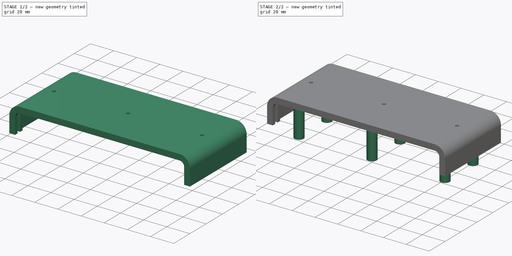
[diagram: build sequence overview — one tinted view per stage of 2, left to right]
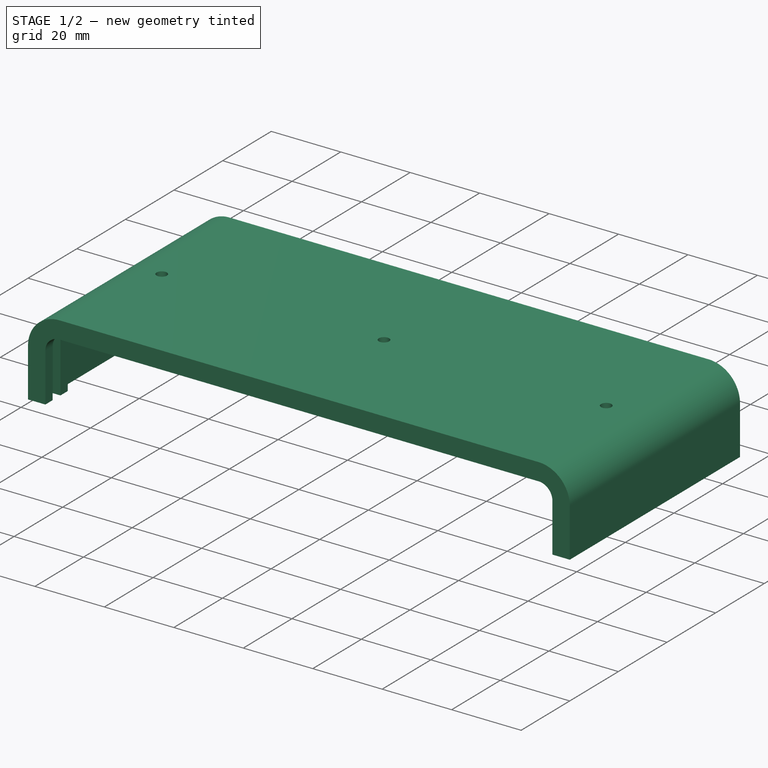
[diagram: stage 1 of 2 — iso view after this stage's code; geometry added in this stage tinted green]
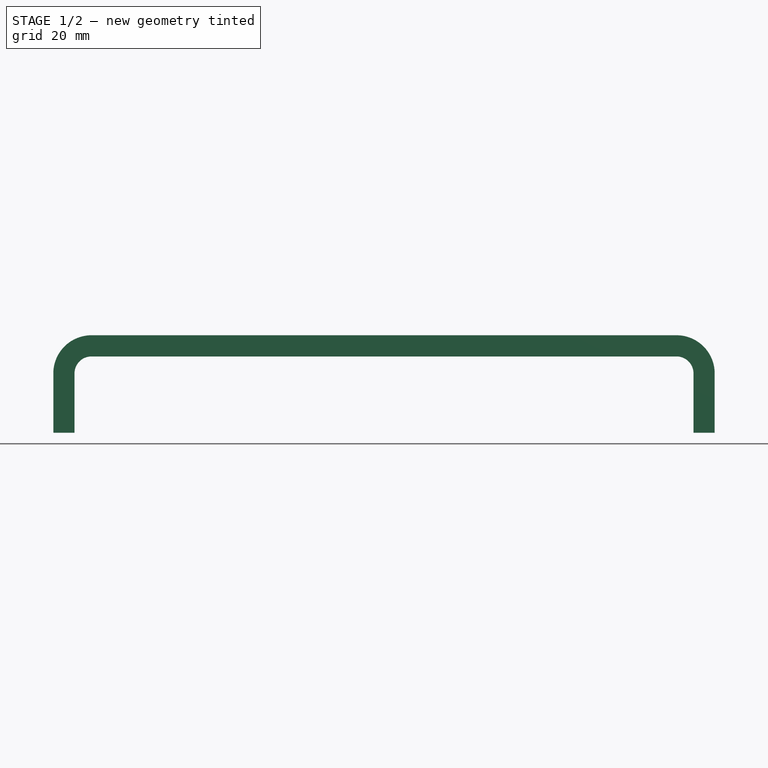
[diagram: stage 1 of 2 — front view after this stage's code; geometry added in this stage tinted green]
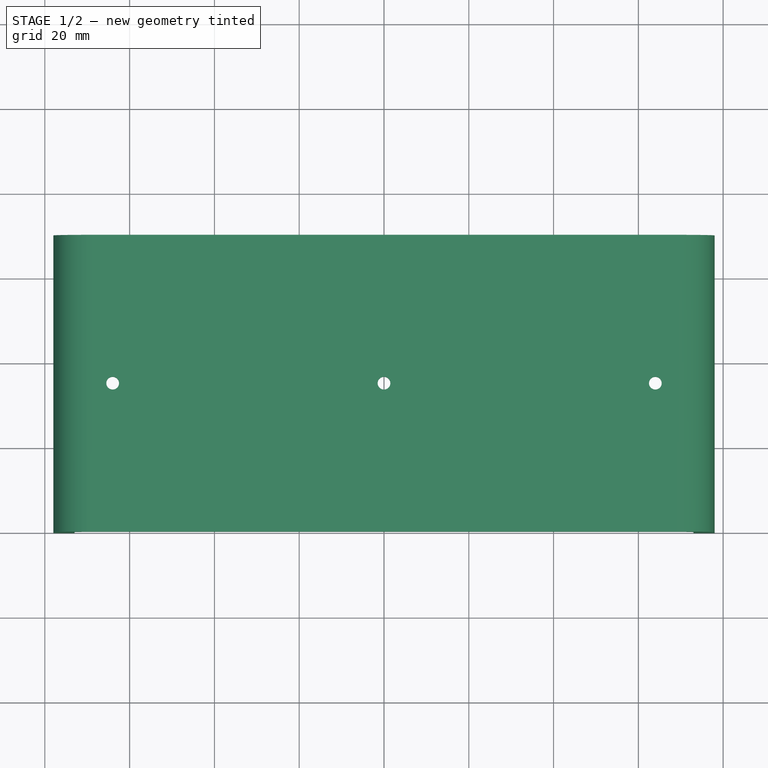
[diagram: stage 1 of 2 — top view after this stage's code; geometry added in this stage tinted green]
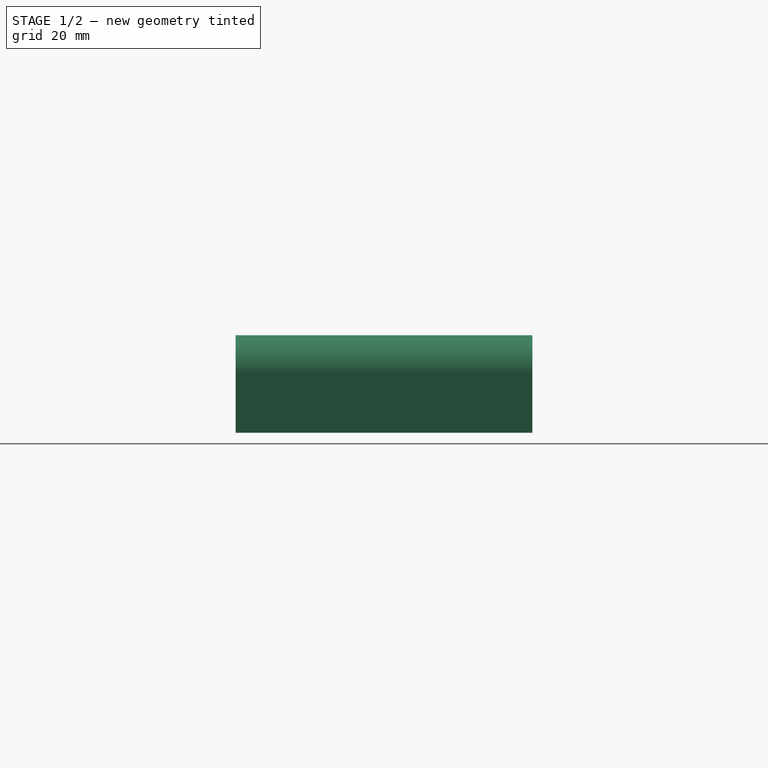
[diagram: stage 1 of 2 — right view after this stage's code; geometry added in this stage tinted green]
FCSTD DOCUMENT  (FreeCAD 0.20R29603 (Git))
Label: dessus
License: Public Domain
LicenseURL: http://en.wikipedia.org/wiki/Public_domain
objects: Sketcher::SketchObject×5, PartDesign::Pocket×2, PartDesign::AdditivePipe×1, PartDesign::Pad×1, PartDesign::Body×1
note: 14 computed .brp shape members not serialized (recipe doc carries the construction recipe); baked Part::Feature solids carry a one-line shape summary decoded from their .brp

FEATURE [Sketcher::SketchObject] Sketch  label="section"
  FullyConstrained = true
  MapMode = 5
  Placement = pos=(0,0,0) rot=(0.57735,0.57735,0.57735;2.0944rad)
  Support = -> [YZ_Plane]
  sketch-geometry (16):
    g0: LineSegment StartX=0 StartY=5 StartZ=0 EndX=70 EndY=5 EndZ=0
    g1: LineSegment StartX=70 StartY=5 StartZ=0 EndX=70 EndY=0 EndZ=0
    g2: LineSegment StartX=70 StartY=0 StartZ=0 EndX=67 EndY=0 EndZ=0
    g3: LineSegment StartX=60.8 StartY=2.2 StartZ=0 EndX=9.2 EndY=2.2 EndZ=0
    g4: LineSegment StartX=9.2 StartY=2.2 StartZ=0 EndX=9.2 EndY=0 EndZ=0
    g5: LineSegment StartX=9.2 StartY=0 StartZ=0 EndX=6.2 EndY=0 EndZ=0
    g6: LineSegment StartX=6.2 StartY=0 StartZ=0 EndX=6.2 EndY=2.2 EndZ=0
    g7: LineSegment StartX=0 StartY=5 StartZ=0 EndX=0 EndY=0 EndZ=0
    g8: LineSegment StartX=3 StartY=2.2 StartZ=0 EndX=3 EndY=0 EndZ=0
    g9: LineSegment StartX=0 StartY=0 StartZ=0 EndX=3 EndY=0 EndZ=0
    g10: LineSegment StartX=3 StartY=2.2 StartZ=0 EndX=6.2 EndY=2.2 EndZ=0
    g11: LineSegment StartX=67 StartY=0 StartZ=0 EndX=67 EndY=2.2 EndZ=0
    g12: LineSegment StartX=67 StartY=2.2 StartZ=0 EndX=63.8 EndY=2.2 EndZ=0
    g13: LineSegment StartX=63.8 StartY=2.2 StartZ=0 EndX=63.8 EndY=0 EndZ=0
    g14: LineSegment StartX=63.8 StartY=0 StartZ=0 EndX=60.8 EndY=0 EndZ=0
    g15: LineSegment StartX=60.8 StartY=0 StartZ=0 EndX=60.8 EndY=2.2 EndZ=0
  constraints (48):
    c: Horizontal(g0)
    c: Coincident(g0,g1)
    c: Coincident(g1,g2)
    c: Horizontal(g2)
    c: Horizontal(g3)
    c: Coincident(g3,g4)
    c: Vertical(g4)
    c: Coincident(g4,g5)
    c: Coincident(g5,g6)
    c: Vertical(g6)
    c: Vertical(g1)
    c: Horizontal(g5)
    c: DistanceX(g0,g0) = 70
    c: DistanceX(g8,g6) = 3.2
    c: DistanceX(g5,g5) = 3
    c: Horizontal(g3,g6)
    c: PointOnObject(g5,g-1)
    c: Coincident(g7,g0)
    c: Coincident(g7,g-1)
    c: Vertical(g7)
    c: PointOnObject(g8,g-1)
    c: Vertical(g8)
    c: Coincident(g9,g7)
    c: Coincident(g9,g8)
    c: DistanceX(g9,g9) = 3
    c: PointOnObject(g1,g-1)
    c: Equal(g2,g9)
    c: Coincident(g10,g8)
    c: Coincident(g10,g6)
    c: Horizontal(g10)
    c: DistanceY(g8,g8) = 2.2
    c: DistanceY(g7,g0) = 5
    c: Coincident(g11,g2)
    c: Vertical(g11)
    c: Coincident(g12,g11)
    c: Horizontal(g12)
    c: Coincident(g13,g12)
    c: PointOnObject(g13,g-1)
    c: Vertical(g13)
    c: Coincident(g14,g13)
    c: PointOnObject(g14,g-1)
    c: Coincident(g15,g14)
    c: Coincident(g15,g3)
    c: Vertical(g15)
    c: Horizontal(g12,g3)
    c: Equal(g12,g10)
    c: Equal(g14,g5)
    c: DistanceY(g1,g1) = 5
FEATURE [Sketcher::SketchObject] Sketch001  label="pipe_curve_right"
  FullyConstrained = true
  MapMode = 5
  Placement = pos=(0,0,0) rot=(1,0,0;1.5708rad)
  Support = -> [XZ_Plane]
  sketch-geometry (6):
    g0: LineSegment StartX=0 StartY=0 StartZ=0 EndX=69 EndY=0 EndZ=0
    g1: ArcOfCircle CenterX=69 CenterY=-4 CenterZ=0 NormalX=0 NormalY=0 NormalZ=1 AngleXU=0 Radius=4 StartAngle=0 EndAngle=1.5708
    g2: LineSegment StartX=73 StartY=-4 StartZ=0 EndX=73 EndY=-18 EndZ=0
    g3: LineSegment StartX=0 StartY=0 StartZ=0 EndX=-69 EndY=6.2e-15 EndZ=0
    g4: ArcOfCircle CenterX=-69 CenterY=-4 CenterZ=0 NormalX=0 NormalY=0 NormalZ=1 AngleXU=0 Radius=4 StartAngle=1.5708 EndAngle=3.14159
    g5: LineSegment StartX=-73 StartY=-4 StartZ=0 EndX=-73 EndY=-18 EndZ=0
  constraints (20):
    c: Horizontal(g0)
    c: Coincident(g1,g0)
    c: Vertical(g1,g0)
    c: Horizontal(g1,g1)
    c: Coincident(g2,g1)
    c: Vertical(g2)
    c: Coincident(g0,g-1)
    c: Coincident(g3,g0)
    c: PointOnObject(g3,g-1)
    c: Coincident(g4,g3)
    c: Vertical(g4,g3)
    c: Horizontal(g4,g4)
    c: Radius(g4) = 4
    c: Coincident(g5,g4)
    c: Vertical(g5)
    c: DistanceY(g5,g5) = 14
    c: DistanceX(g3,g3) = 69
    c: Equal(g0,g3)
    c: Equal(g2,g5)
    c: Equal(g1,g4)
FEATURE [PartDesign::AdditivePipe] AdditivePipe
  AuxilleryCurvelinear = true
  AuxillerySpineTangent = false
  Binormal = (0,0,0)
  Mode = 0
  Placement = pos=(0,0,0) rot=(0.57735,0.57735,0.57735;2.0944rad)
  Profile = -> Sketch
  Spine = -> Sketch001
  SpineTangent = false
  Transformation = 0
  Transition = 0
FEATURE [Sketcher::SketchObject] Sketch002
  ExternalGeometry = -> [AdditivePipe]
  FullyConstrained = true
  MapMode = 5
  Placement = pos=(-1e-16,2.8e-15,5) rot=(0,0,-1;1.5708rad)
  Support = -> [AdditivePipe]
  sketch-geometry (3):
    g0: Circle CenterX=-35 CenterY=-64 CenterZ=0 NormalX=0 NormalY=0 NormalZ=1 AngleXU=0 Radius=1.5
    g1: Circle CenterX=-35 CenterY=64 CenterZ=0 NormalX=0 NormalY=0 NormalZ=1 AngleXU=0 Radius=1.5
    g2: Circle CenterX=-35 CenterY=0 CenterZ=0 NormalX=0 NormalY=0 NormalZ=1 AngleXU=0 Radius=1.5
  constraints (9):
    c: Diameter(g1) = 3
    c: Equal(g0,g1)
    c: DistanceX(g-3,g1) = 35
    c: DistanceY(g1,g-3) = 5
    c: DistanceX(g-4,g0) = 35
    c: DistanceY(g-4,g0) = 5
    c: Equal(g2,g1)
    c: PointOnObject(g2,g-1)
    c: DistanceX(g-4,g2) = 35
FEATURE [PartDesign::Pocket] Pocket
  BaseFeature = -> AdditivePipe
  Direction = (0,-6e-16,-1)
  Length = 5
  Length2 = 5
  Placement = pos=(0,0,0) rot=(0.57735,0.57735,0.57735;2.0944rad)
  Profile = -> Sketch002
  ReferenceAxis = -> Sketch002 [N_Axis]
  Type = 1
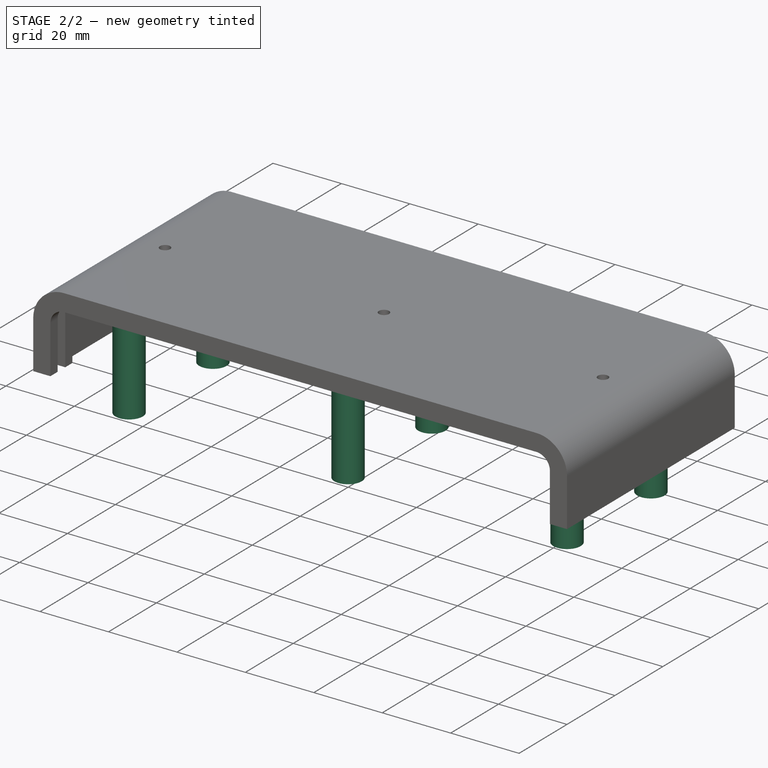
[diagram: stage 2 of 2 — iso view after this stage's code; geometry added in this stage tinted green]
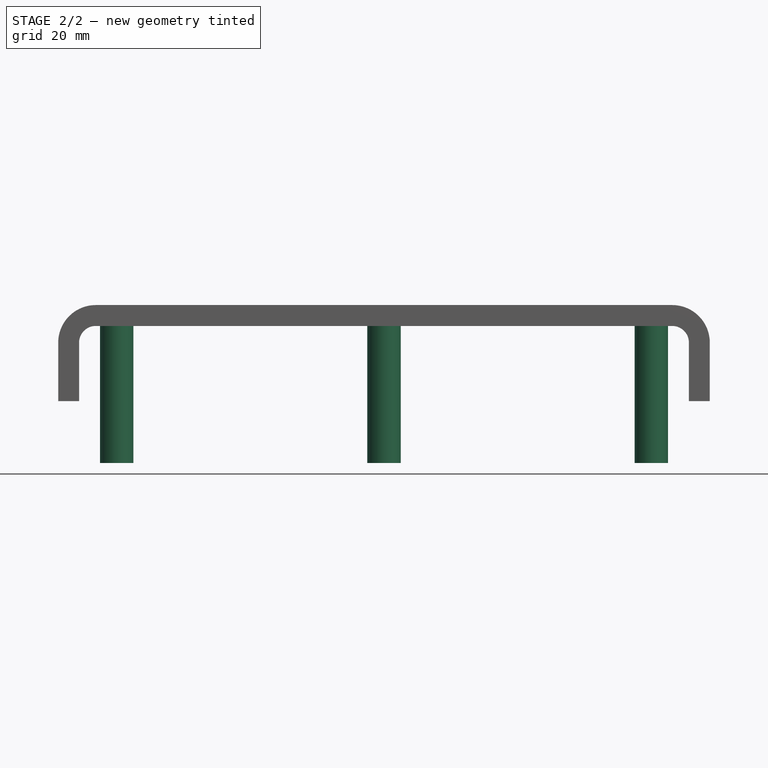
[diagram: stage 2 of 2 — front view after this stage's code; geometry added in this stage tinted green]
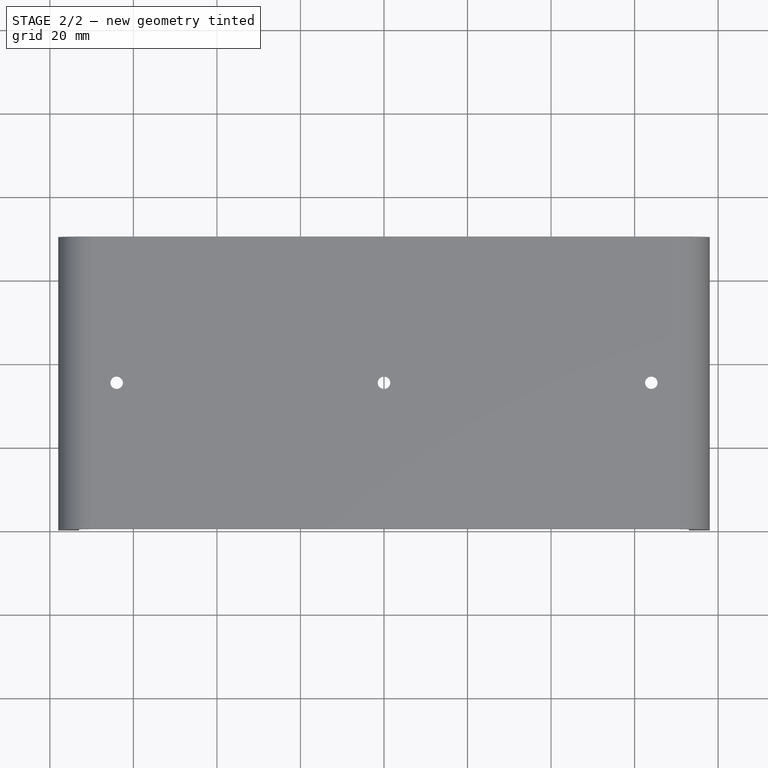
[diagram: stage 2 of 2 — top view after this stage's code; geometry added in this stage tinted green]
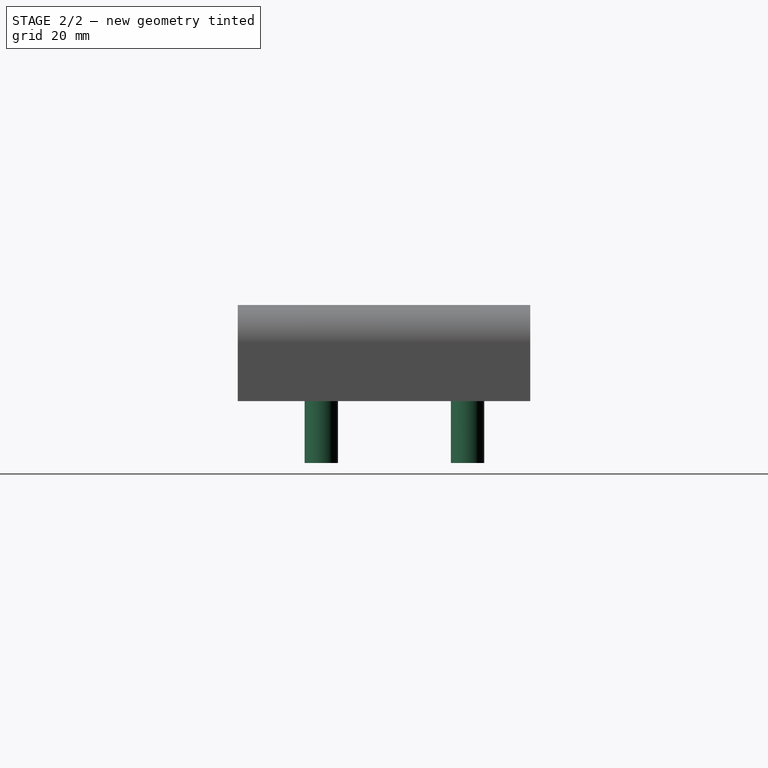
[diagram: stage 2 of 2 — right view after this stage's code; geometry added in this stage tinted green]
FEATURE [Sketcher::SketchObject] Sketch003
  ExternalGeometry = -> [Pocket]
  FullyConstrained = true
  MapMode = 5
  Placement = pos=(-8e-16,1.5e-15,2.2) rot=(0.707107,0.707107,0;3.14159rad)
  Support = -> [Pocket]
  sketch-geometry (6):
    g0: Circle CenterX=20 CenterY=64 CenterZ=0 NormalX=0 NormalY=0 NormalZ=1 AngleXU=0 Radius=4
    g1: Circle CenterX=55 CenterY=64 CenterZ=0 NormalX=0 NormalY=0 NormalZ=1 AngleXU=0 Radius=4
    g2: Circle CenterX=20 CenterY=0 CenterZ=0 NormalX=0 NormalY=0 NormalZ=1 AngleXU=0 Radius=4
    g3: Circle CenterX=55 CenterY=0 CenterZ=0 NormalX=0 NormalY=0 NormalZ=1 AngleXU=0 Radius=4
    g4: Circle CenterX=20 CenterY=-64 CenterZ=0 NormalX=0 NormalY=0 NormalZ=1 AngleXU=0 Radius=4
    g5: Circle CenterX=55 CenterY=-64 CenterZ=0 NormalX=0 NormalY=0 NormalZ=1 AngleXU=0 Radius=4
  constraints (18):
    c: Diameter(g0) = 8
    c: Horizontal(g-3,g0)
    c: DistanceX(g0,g-3) = 15
    c: Diameter(g1) = 8
    c: Horizontal(g-3,g1)
    c: DistanceX(g-3,g1) = 20
    c: Equal(g2,g0)
    c: Equal(g3,g0)
    c: Equal(g4,g0)
    c: Equal(g5,g0)
    c: Horizontal(g2,g3)
    c: Horizontal(g4,g5)
    c: Vertical(g4,g2)
    c: Vertical(g2,g0)
    c: Vertical(g1,g3)
    c: Vertical(g3,g5)
    c: PointOnObject(g3,g-1)
    c: Horizontal(g5,g-4)
FEATURE [PartDesign::Pad] Pad
  BaseFeature = -> Pocket
  Direction = (4e-16,-7e-16,-1)
  Length = 35
  Length2 = 10
  Placement = pos=(0,0,0) rot=(0.57735,0.57735,0.57735;2.0944rad)
  Profile = -> Sketch003
  ReferenceAxis = -> Sketch003 [N_Axis]
  Type = 0
FEATURE [Sketcher::SketchObject] Sketch004
  ExternalGeometry = -> [Pad]
  FullyConstrained = true
  MapMode = 5
  Placement = pos=(2.26e-14,-2.55e-14,-32.8) rot=(0.707107,0.707107,0;3.14159rad)
  Support = -> [Pad]
  sketch-geometry (6):
    g0: Circle CenterX=20 CenterY=64 CenterZ=0 NormalX=0 NormalY=0 NormalZ=1 AngleXU=0 Radius=1
    g1: Circle CenterX=55 CenterY=64 CenterZ=0 NormalX=0 NormalY=0 NormalZ=1 AngleXU=0 Radius=1
    g2: Circle CenterX=20 CenterY=0 CenterZ=0 NormalX=0 NormalY=0 NormalZ=1 AngleXU=0 Radius=1
    g3: Circle CenterX=55 CenterY=1e-16 CenterZ=0 NormalX=0 NormalY=0 NormalZ=1 AngleXU=0 Radius=1
    g4: Circle CenterX=20 CenterY=-64 CenterZ=0 NormalX=0 NormalY=0 NormalZ=1 AngleXU=0 Radius=1
    g5: Circle CenterX=55 CenterY=-64 CenterZ=0 NormalX=0 NormalY=0 NormalZ=1 AngleXU=0 Radius=1
  constraints (12):
    c: Coincident(g0,g-3)
    c: Coincident(g1,g-4)
    c: Coincident(g2,g-5)
    c: Diameter(g3) = 2
    c: Coincident(g3,g-6)
    c: Coincident(g5,g-7)
    c: Coincident(g4,g-8)
    c: Equal(g2,g3)
    c: Equal(g5,g3)
    c: Equal(g4,g3)
    c: Equal(g1,g3)
    c: Equal(g0,g3)
FEATURE [PartDesign::Pocket] Pocket001
  BaseFeature = -> Pad
  Direction = (-7e-16,8e-16,1)
  Length = 10
  Length2 = 5
  Placement = pos=(0,0,0) rot=(0.57735,0.57735,0.57735;2.0944rad)
  Profile = -> Sketch004
  ReferenceAxis = -> Sketch004 [N_Axis]
  Type = 0
FEATURE [PartDesign::Body] Body
  Group = -> [Sketch,Sketch001,AdditivePipe,Sketch002,Pocket,Sketch003,Pad,Sketch004,Pocket001]
  Origin = -> Origin
  Tip = -> Pocket001
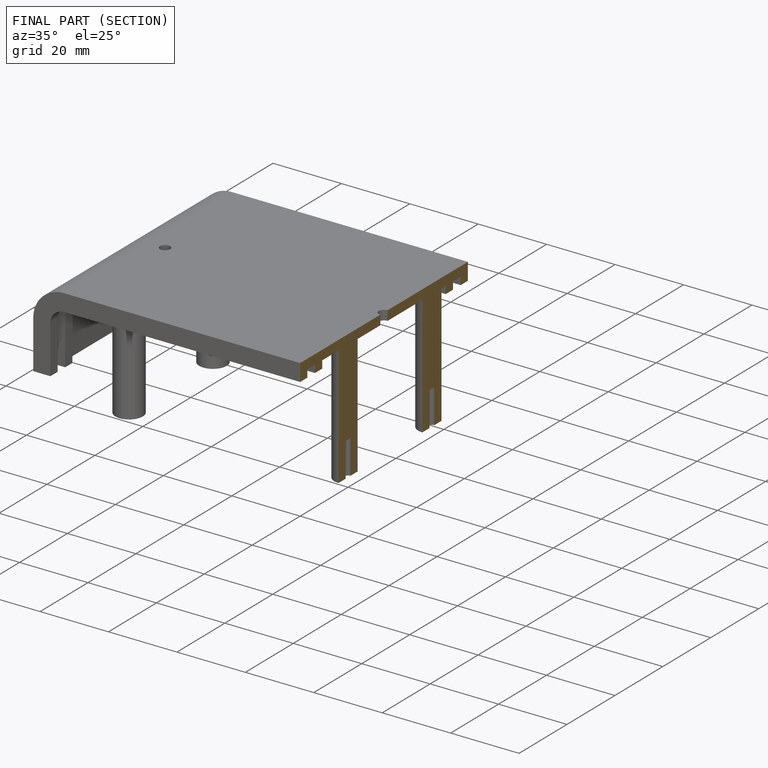
[diagram: finished part — half-section view (interior)]
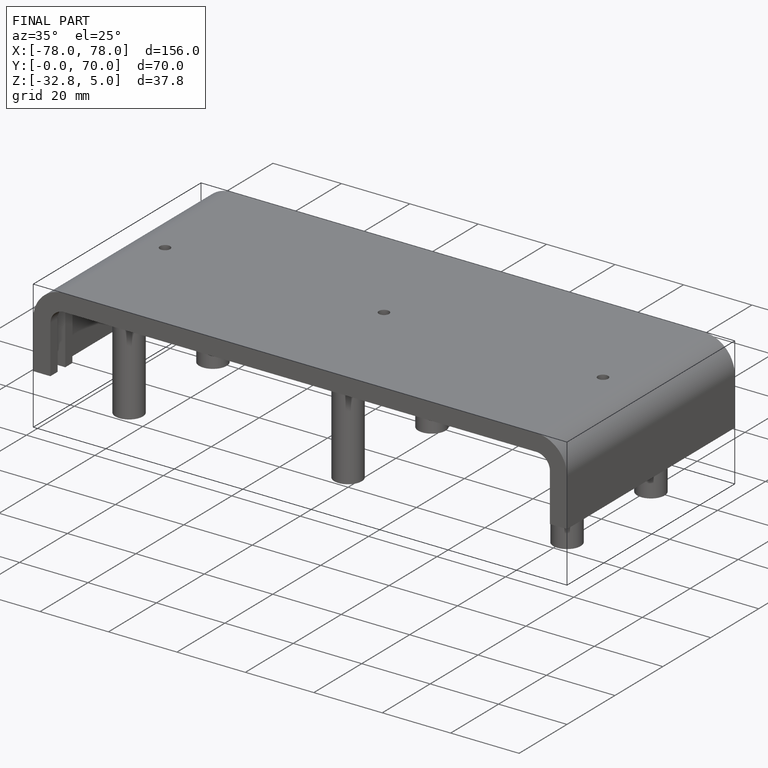
[diagram: finished part — iso view with bounding-box wireframe]
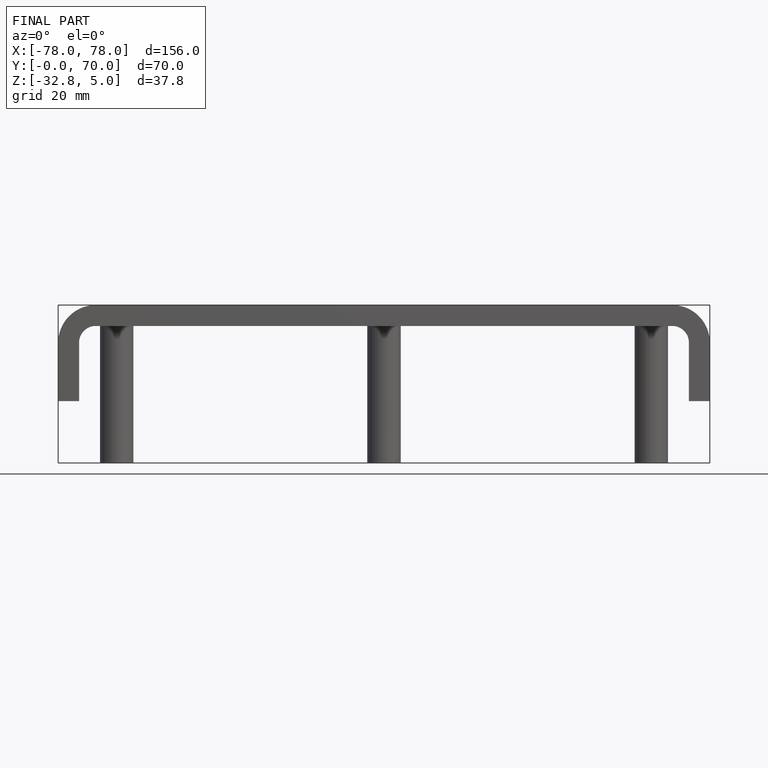
[diagram: finished part — front view with bounding-box wireframe]
